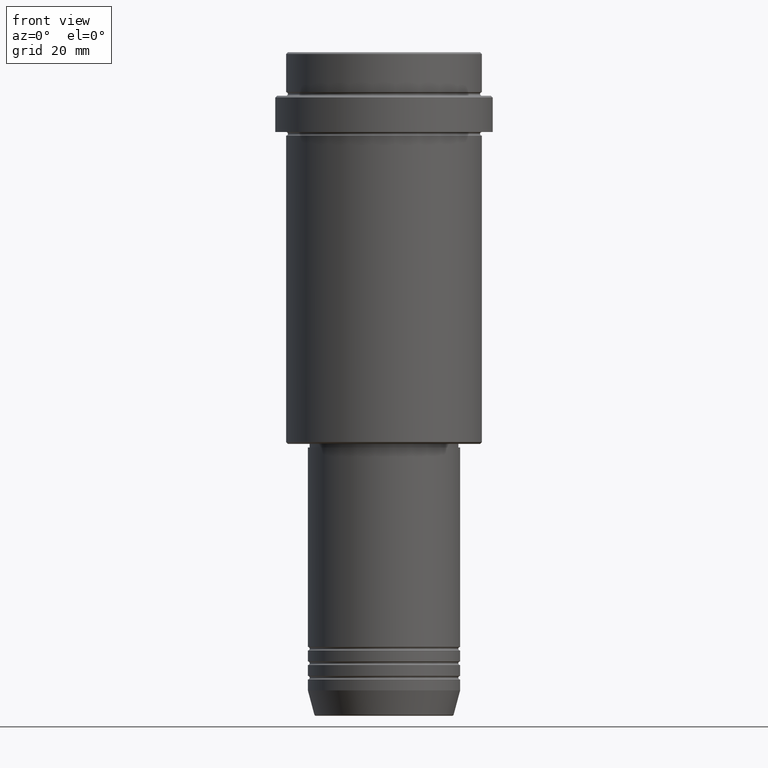
[diagram: clean part render]
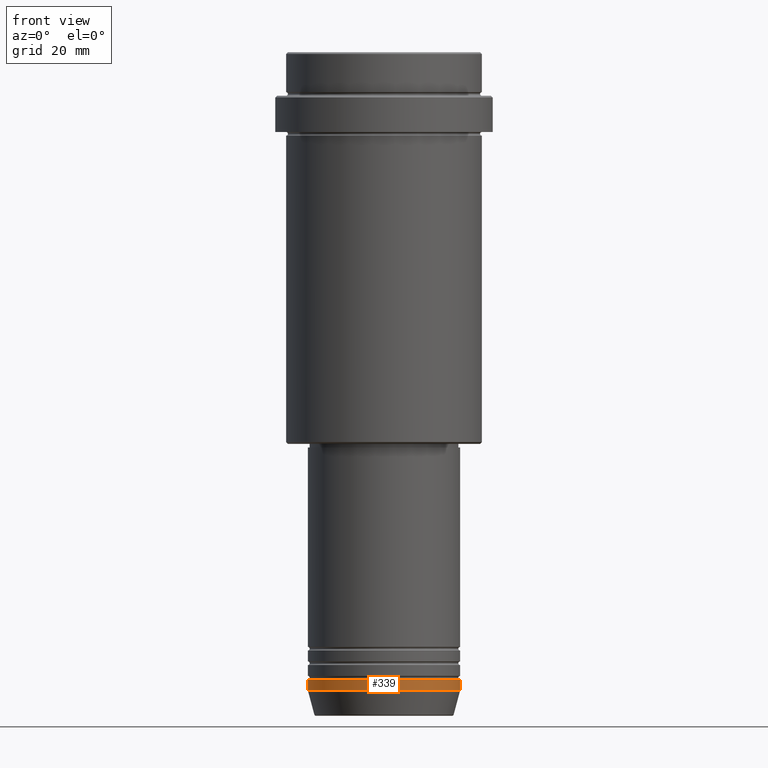
[diagram: same view with one face highlighted and labeled with its STEP entity id]
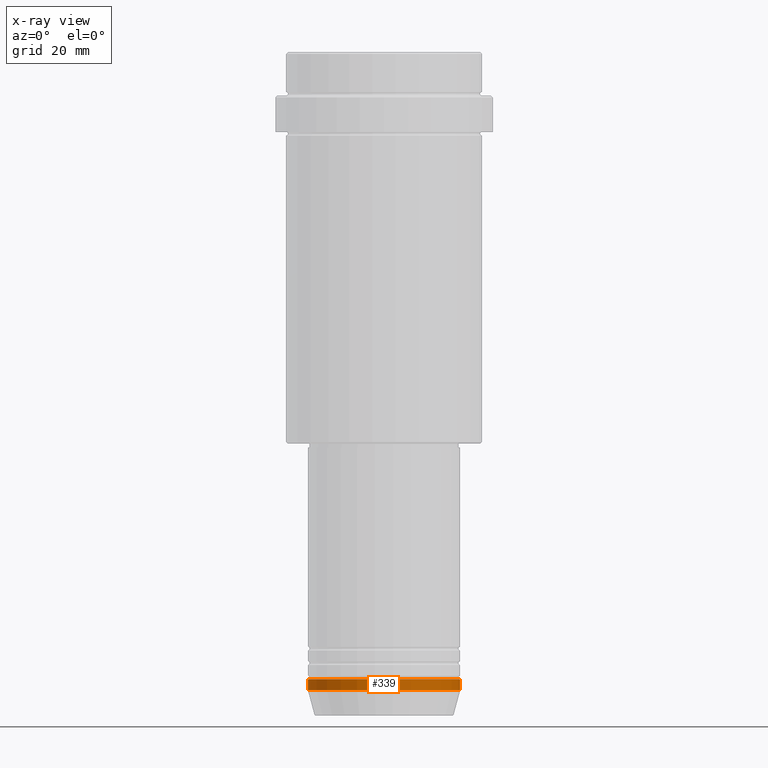
[diagram: x-ray of the same camera — body ghosted, the highlighted face saturated]
A machine part, front view. The second image highlights one B-rep face of the part: STEP entity #339.
The next image is the same camera in x-ray: the body ghosted, the highlighted face saturated — about 0% of this face is hidden behind the body in this view.
In plain terms, the highlighted cylindrical surface (partial cylindrical patch) has radius 21 mm, axis along (-0, -0, 1).
Its self-contained STEP definition (entity closure, byte-faithful):
#3 = CARTESIAN_POINT ( 'NONE',  ( 21.00000000000000000, 0.000000000000000000, -176.0000000000000284 ) ) ;
#15 = VECTOR ( 'NONE', #881, 1000.000000000000000 ) ;
#42 = CIRCLE ( 'NONE', #1140, 21.00000000000000000 ) ;
#124 = CARTESIAN_POINT ( 'NONE',  ( 21.00000000000000000, 0.000000000000000000, 0.000000000000000000 ) ) ;
#214 = DIRECTION ( 'NONE',  ( -0.000000000000000000, -0.000000000000000000, 1.000000000000000000 ) ) ;
#259 = CARTESIAN_POINT ( 'NONE',  ( -21.00000000000000000, 2.571758278209441661E-15, -176.0000000000000284 ) ) ;
#283 = CARTESIAN_POINT ( 'NONE',  ( -21.00000000000000000, 2.571758278209441661E-15, 0.000000000000000000 ) ) ;
#317 = LINE ( 'NONE', #283, #757 ) ;
#339 = ADVANCED_FACE ( 'NONE', ( #625 ), #1379, .T. ) ;
#382 = VERTEX_POINT ( 'NONE', #1298 ) ;
#383 = VERTEX_POINT ( 'NONE', #1277 ) ;
#424 = ORIENTED_EDGE ( 'NONE', *, *, #1016, .T. ) ;
#440 = EDGE_CURVE ( 'NONE', #1068, #514, #1003, .T. ) ;
#444 = DIRECTION ( 'NONE',  ( 1.000000000000000000, 0.000000000000000000, 0.000000000000000000 ) ) ;
#514 = VERTEX_POINT ( 'NONE', #3 ) ;
#536 = DIRECTION ( 'NONE',  ( -0.000000000000000000, -0.000000000000000000, 1.000000000000000000 ) ) ;
#565 = AXIS2_PLACEMENT_3D ( 'NONE', #1188, #214, #444 ) ;
#625 = FACE_OUTER_BOUND ( 'NONE', #849, .T. ) ;
#632 = CARTESIAN_POINT ( 'NONE',  ( 0.000000000000000000, 0.000000000000000000, 0.000000000000000000 ) ) ;
#641 = DIRECTION ( 'NONE',  ( 1.000000000000000000, 0.000000000000000000, 0.000000000000000000 ) ) ;
#665 = CARTESIAN_POINT ( 'NONE',  ( 0.000000000000000000, 0.000000000000000000, -173.0000000000000284 ) ) ;
#757 = VECTOR ( 'NONE', #536, 1000.000000000000000 ) ;
#784 = DIRECTION ( 'NONE',  ( 1.000000000000000000, 0.000000000000000000, 0.000000000000000000 ) ) ;
#816 = EDGE_CURVE ( 'NONE', #1068, #382, #317, .T. ) ;
#849 = EDGE_LOOP ( 'NONE', ( #973, #1325, #424, #1278 ) ) ;
#881 = DIRECTION ( 'NONE',  ( -0.000000000000000000, -0.000000000000000000, 1.000000000000000000 ) ) ;
#973 = ORIENTED_EDGE ( 'NONE', *, *, #816, .F. ) ;
#1000 = DIRECTION ( 'NONE',  ( -0.000000000000000000, -0.000000000000000000, 1.000000000000000000 ) ) ;
#1003 = CIRCLE ( 'NONE', #565, 21.00000000000000000 ) ;
#1016 = EDGE_CURVE ( 'NONE', #514, #383, #1203, .T. ) ;
#1068 = VERTEX_POINT ( 'NONE', #259 ) ;
#1069 = DIRECTION ( 'NONE',  ( -0.000000000000000000, -0.000000000000000000, 1.000000000000000000 ) ) ;
#1094 = AXIS2_PLACEMENT_3D ( 'NONE', #632, #1069, #641 ) ;
#1140 = AXIS2_PLACEMENT_3D ( 'NONE', #665, #1000, #784 ) ;
#1188 = CARTESIAN_POINT ( 'NONE',  ( 0.000000000000000000, 0.000000000000000000, -176.0000000000000284 ) ) ;
#1203 = LINE ( 'NONE', #124, #15 ) ;
#1277 = CARTESIAN_POINT ( 'NONE',  ( 21.00000000000000000, 0.000000000000000000, -173.0000000000000284 ) ) ;
#1278 = ORIENTED_EDGE ( 'NONE', *, *, #1411, .F. ) ;
#1298 = CARTESIAN_POINT ( 'NONE',  ( -21.00000000000000000, 2.571758278209441661E-15, -173.0000000000000284 ) ) ;
#1325 = ORIENTED_EDGE ( 'NONE', *, *, #440, .T. ) ;
#1379 = CYLINDRICAL_SURFACE ( 'NONE', #1094, 21.00000000000000000 ) ;
#1411 = EDGE_CURVE ( 'NONE', #382, #383, #42, .T. ) ;